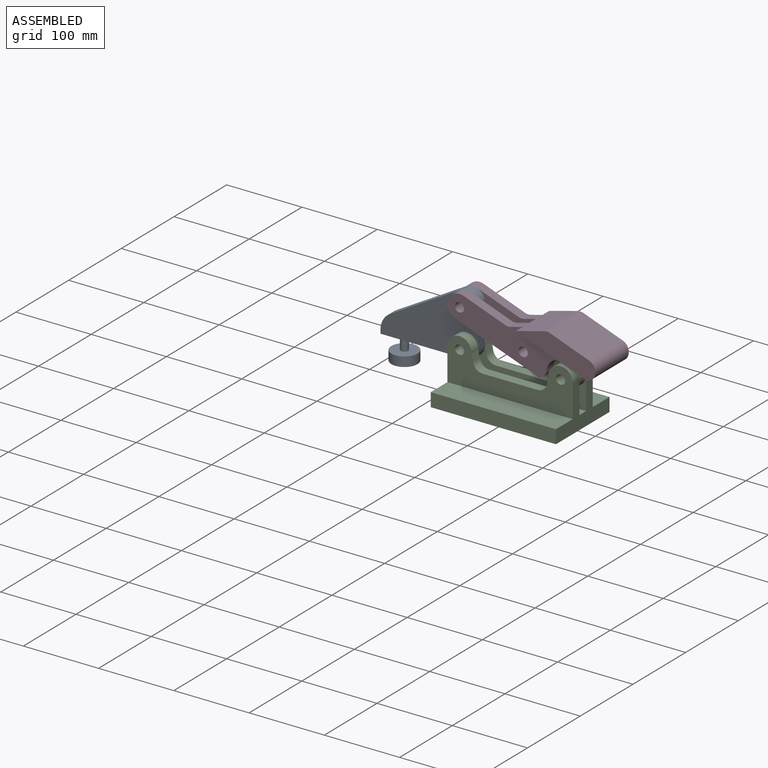
[diagram: assembled view]
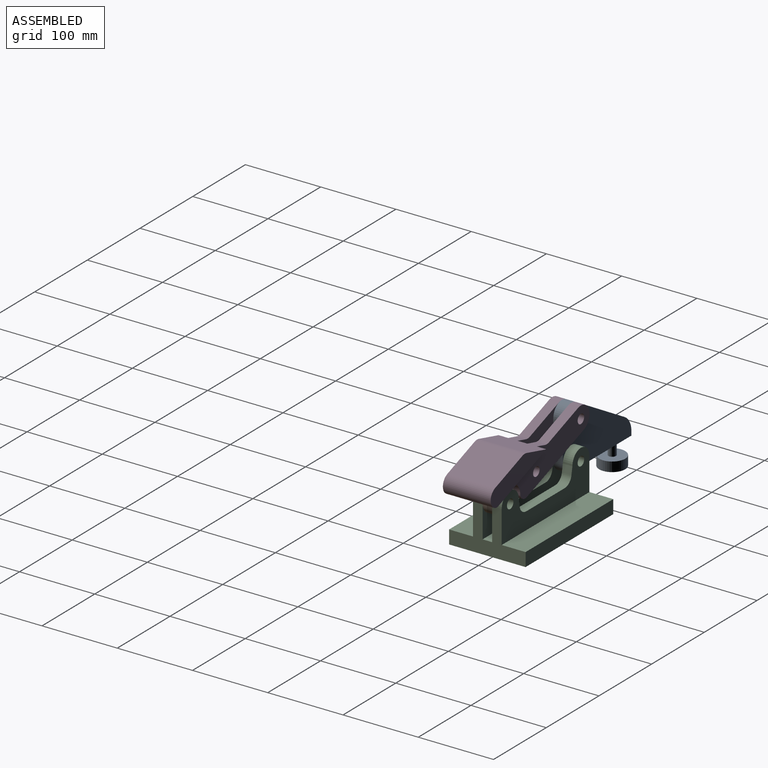
[diagram: assembled view, second angle]
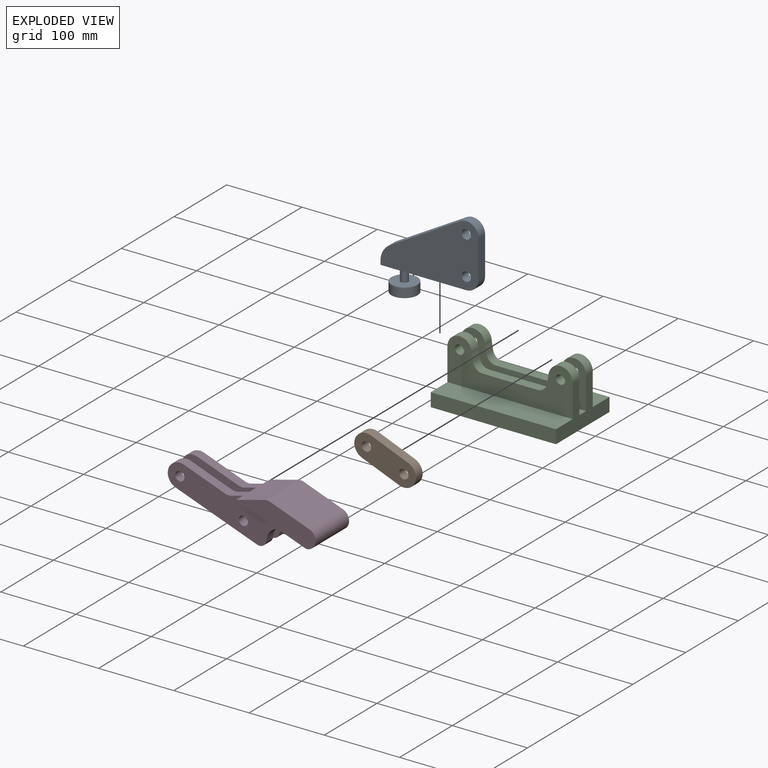
[diagram: exploded view]
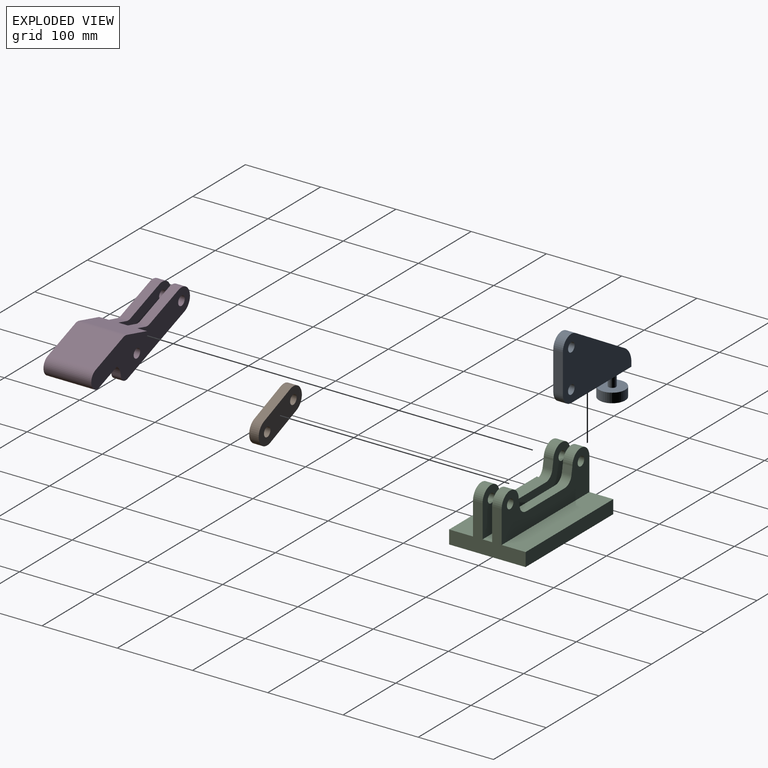
[diagram: exploded view, second angle]
ASSEMBLY  parts=4 mates=4
PART A: 15 faces, bbox 130.2x34.7x110.2 mm
  f0: cylinder r=16.14mm len=16.14mm, axis (0,1,0), area 322mm2, adj f1,f6,f9,f10
  f1: plane 50.79x12.7mm, normal (1,0,0), area 645mm2, adj f0,f2,f9,f10
  f2: cylinder r=16.14mm len=24.21mm, axis (0,1,0), area 429.4mm2, adj f1,f3,f9,f10
  f3: plane 93.26x53.85mm, normal (-0.5,0,0.87), area 1367.7mm2, adj f2,f4,f9,f10
  f4: cylinder r=25.4mm len=22mm, axis (0,1,0), area 337.8mm2, adj f3,f5,f9,f10
  f5: plane 12.7x5.06mm, normal (-1,0,0), area 64.3mm2, adj f4,f6,f9,f10
  f6: plane 114.03x12.7mm, normal (0,0,-1), area 1369.8mm2, adj f0,f5,f9,f10,f14
  f7: cylinder r=6.16mm len=12.7mm, axis (0,1,0), area 491.6mm2, adj f9,f10
  f8: cylinder r=6.16mm len=12.7mm, axis (0,1,0), area 491.6mm2, adj f9,f10
  f9: plane 130.18x83.07mm, normal (0,-1,0), area 6952.4mm2, adj f0,f1,f2,f3,f4,f5,f6,f7
  f10: plane 130.18x83.07mm, normal (0,1,0), area 6952.4mm2, adj f0,f1,f2,f3,f4,f5,f6,f7
  f11: cylinder r=17.34mm len=34.67mm, axis (0,0,-1), area 1383.4mm2, adj f12,f13
  f12: plane 34.67x34.67mm, normal (0,0,1), area 865.8mm2, adj f11,f14
  f13: plane 34.67x34.67mm, normal (0,0,-1), area 944.2mm2, adj f11
  f14: cylinder r=5mm len=14.4mm, axis (0,0,-1), area 452mm2, adj f6,f12
PART B: 8 faces, bbox 82.7x12.7x50.3 mm
  f0: cylinder r=16.14mm len=31.34mm, axis (0,1,0), area 644mm2, adj f1,f3,f6,f7
  f1: plane 50.37x17.99mm, normal (0.34,0,0.94), area 679.3mm2, adj f0,f2,f6,f7
  f2: cylinder r=16.14mm len=31.34mm, axis (0,1,0), area 644mm2, adj f1,f3,f6,f7
  f3: plane 50.37x17.99mm, normal (-0.34,0,-0.94), area 679.3mm2, adj f0,f2,f6,f7
  f4: cylinder r=6.16mm len=12.7mm, axis (0,1,0), area 491.6mm2, adj f6,f7
  f5: cylinder r=6.16mm len=12.7mm, axis (0,1,0), area 491.6mm2, adj f6,f7
  f6: plane 82.65x50.27mm, normal (0,-1,0), area 2306.8mm2, adj f0,f1,f2,f3,f4,f5
  f7: plane 82.65x50.27mm, normal (0,1,0), area 2306.8mm2, adj f0,f1,f2,f3,f4,f5
PART C: 30 faces, bbox 166.5x101.6x77.4 mm
  f0: cylinder r=12.7mm len=12.7mm, axis (0,1,0), area 224.2mm2, adj f1,f10,f11,f12
  f1: plane 73.21x12.7mm, normal (0,0,1), area 929.8mm2, adj f0,f2,f11,f12
  f2: cylinder r=12.7mm len=12.7mm, axis (0,1,0), area 224.2mm2, adj f1,f3,f11,f12
  f3: plane 12.7x10.2mm, normal (0.98,0,0.18), area 131.6mm2, adj f2,f4,f11,f12
  f4: cylinder r=16.14mm len=32.28mm, axis (0,1,0), area 644mm2, adj f3,f5,f11,f12
  f5: plane 101.6x61.26mm, normal (-1,0,0), area 2929.5mm2, adj f4,f11,f12,f13,f18,f23,f24,f25
  f6: plane 101.6x61.26mm, normal (1,0,0), area 2929.5mm2, adj f7,f11,f12,f13,f19,f23,f24,f25
  f7: cylinder r=16.14mm len=32.28mm, axis (0,1,0), area 644mm2, adj f6,f10,f11,f12
  f8: cylinder r=6.16mm len=12.7mm, axis (0,1,0), area 491.6mm2, adj f11,f12
  f9: cylinder r=6.16mm len=12.7mm, axis (0,1,0), area 491.6mm2, adj f11,f12
  f10: plane 12.7x10.2mm, normal (-0.98,0,0.18), area 131.6mm2, adj f0,f7,f11,f12
  f11: plane 166.49x59.38mm, normal (0,-1,0), area 5800.5mm2, adj f0,f1,f2,f3,f4,f5,f6,f7
  f12: plane 166.49x59.38mm, normal (0,1,0), area 5800.5mm2, adj f0,f1,f2,f3,f4,f5,f6,f7
  f13: plane 166.49x31.75mm, normal (0,0,1), area 5286.1mm2, adj f5,f6,f11,f28
  f14: cylinder r=12.7mm len=12.7mm, axis (0,-1,0), area 224.2mm2, adj f15,f22,f23,f24
  f15: plane 73.21x12.7mm, normal (0,0,1), area 929.8mm2, adj f14,f16,f23,f24
  f16: cylinder r=12.7mm len=12.7mm, axis (0,-1,0), area 224.2mm2, adj f15,f17,f23,f24
  f17: plane 12.7x10.2mm, normal (0.98,0,0.18), area 131.6mm2, adj f16,f18,f23,f24
  f18: cylinder r=16.14mm len=32.28mm, axis (0,-1,0), area 644mm2, adj f5,f17,f23,f24
  f19: cylinder r=16.14mm len=32.28mm, axis (0,-1,0), area 644mm2, adj f6,f22,f23,f24
  f20: cylinder r=6.16mm len=12.7mm, axis (0,-1,0), area 491.6mm2, adj f23,f24
  f21: cylinder r=6.16mm len=12.7mm, axis (0,-1,0), area 491.6mm2, adj f23,f24
  f22: plane 12.7x10.2mm, normal (-0.98,0,0.18), area 131.6mm2, adj f14,f19,f23,f24
  f23: plane 166.49x59.38mm, normal (0,1,0), area 5800.5mm2, adj f5,f6,f14,f15,f16,f17,f18,f19
  f24: plane 166.49x59.38mm, normal (0,-1,0), area 5800.5mm2, adj f5,f6,f14,f15,f16,f17,f18,f19
  f25: plane 166.49x12.7mm, normal (0,0,1), area 2114.4mm2, adj f5,f6,f12,f24
  f26: plane 166.49x101.6mm, normal (0,0,-1), area 16915.6mm2, adj f5,f6,f28,f29
  f27: plane 166.49x31.75mm, normal (0,0,1), area 5286.1mm2, adj f5,f6,f23,f29
  f28: plane 166.49x18.02mm, normal (0,-1,0), area 3001mm2, adj f5,f6,f13,f26
  f29: plane 166.49x18.02mm, normal (0,1,0), area 3001mm2, adj f5,f6,f26,f27
PART D: 31 faces, bbox 205x63.5x73.7 mm
  f0: plane 54.42x21.29mm, normal (0.36,0,0.93), area 742.2mm2, adj f1,f11,f13,f14
  f1: cylinder r=16.14mm len=31.17mm, axis (0,-1,0), area 644mm2, adj f0,f2,f13,f14
  f2: plane 107.13x41.92mm, normal (-0.36,0,-0.93), area 1461mm2, adj f1,f3,f13,f14
  f3: cylinder r=9.39mm len=12.77mm, axis (0,-1,0), area 221.3mm2, adj f2,f4,f13,f14
  f4: cylinder r=20.27mm len=36.33mm, axis (0,-1,0), area 619mm2, adj f3,f5,f13,f14
  f5: plane 25.46x12.7mm, normal (-0.02,0,-1), area 323.4mm2, adj f4,f6,f13,f14
  f6: cylinder r=12.7mm len=63.5mm, axis (0,-1,0), area 2252.2mm2, adj f5,f7,f15,f16,f17,f25,f29,f30
  f7: plane 63.5x51.53mm, normal (0.36,0,0.93), area 3513.5mm2, adj f6,f8,f15,f29
  f8: cylinder r=12.7mm len=63.5mm, axis (0,-1,0), area 490mm2, adj f7,f9,f15,f29
  f9: plane 63.5x53.75mm, normal (-0.23,0,0.97), area 2896.1mm2, adj f8,f11,f13,f14,f15,f16,f17,f18
  f10: cylinder r=6.16mm len=12.7mm, axis (0,-1,0), area 491.6mm2, adj f13,f14
  f11: cylinder r=12.7mm len=12.7mm, axis (0,-1,0), area 98mm2, adj f0,f9,f13,f14
  f12: cylinder r=6.16mm len=12.7mm, axis (0,-1,0), area 491.6mm2, adj f13,f14
  f13: plane 191.95x73.73mm, normal (0,1,0), area 5128.6mm2, adj f0,f1,f2,f3,f4,f5,f9,f10
  f14: plane 191.95x73.73mm, normal (0,-1,0), area 5128.6mm2, adj f0,f1,f2,f3,f4,f5,f9,f10
  f15: plane 105.28x45.56mm, normal (0,-1,0), area 2147.1mm2, adj f6,f7,f8,f9,f16
  f16: plane 92.27x36.1mm, normal (-0.36,0,-0.93), area 1258.4mm2, adj f6,f9,f14,f15
  f17: plane 92.27x36.1mm, normal (-0.36,0,-0.93), area 1258.4mm2, adj f6,f9,f13,f18
  f18: plane 191.95x73.73mm, normal (0,-1,0), area 5128.6mm2, adj f9,f17,f20,f21,f22,f23,f24,f25
  f19: plane 191.95x73.73mm, normal (0,1,0), area 5128.6mm2, adj f9,f20,f21,f22,f23,f24,f25,f26
  f20: plane 54.42x21.29mm, normal (0.36,0,0.93), area 742.2mm2, adj f18,f19,f21,f27
  f21: cylinder r=16.14mm len=31.17mm, axis (0,1,0), area 644mm2, adj f18,f19,f20,f22
  f22: plane 107.13x41.92mm, normal (-0.36,0,-0.93), area 1461mm2, adj f18,f19,f21,f23
  f23: cylinder r=9.39mm len=12.77mm, axis (0,1,0), area 221.3mm2, adj f18,f19,f22,f24
  f24: cylinder r=20.27mm len=36.33mm, axis (0,1,0), area 619mm2, adj f18,f19,f23,f25
  f25: plane 25.46x12.7mm, normal (-0.02,0,-1), area 323.4mm2, adj f6,f18,f19,f24
  f26: cylinder r=6.16mm len=12.7mm, axis (0,1,0), area 491.6mm2, adj f18,f19
  f27: cylinder r=12.7mm len=12.7mm, axis (0,1,0), area 98mm2, adj f9,f18,f19,f20
  f28: cylinder r=6.16mm len=12.7mm, axis (0,1,0), area 491.6mm2, adj f18,f19
  f29: plane 105.28x45.56mm, normal (0,1,0), area 2147.1mm2, adj f6,f7,f8,f9,f30
  f30: plane 92.27x36.1mm, normal (-0.36,0,-0.93), area 1258.4mm2, adj f6,f9,f19,f29
PLACE A at identity
PLACE B rot(axis=(0,1,0),2.2deg) t=(-1.58,0,2.55)mm
PLACE C at identity fixed
PLACE D rot(axis=(0,-1,0),1.3deg) t=(2.08,0,1.52)mm
MATE revolute C.f7 <-> B.f0  axis (0,1,0) through (67.1,-6.35,43.24)mm
MATE revolute D.f1 <-> A.f2  axis (0,1,0) through (-67.1,-6.35,94.03)mm
MATE revolute C.f4 <-> A.f0  axis (0,1,0) through (-67.1,-6.35,43.24)mm
MATE revolute B.f2 <-> D.f10  axis (0,1,0) through (17.44,6.35,63.1)mm
